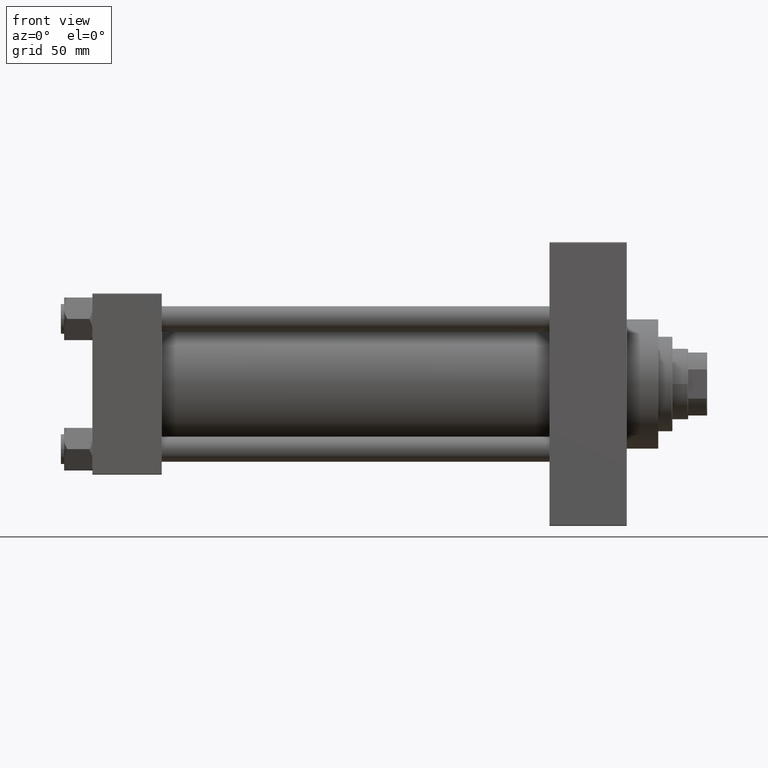
[diagram: clean part render]
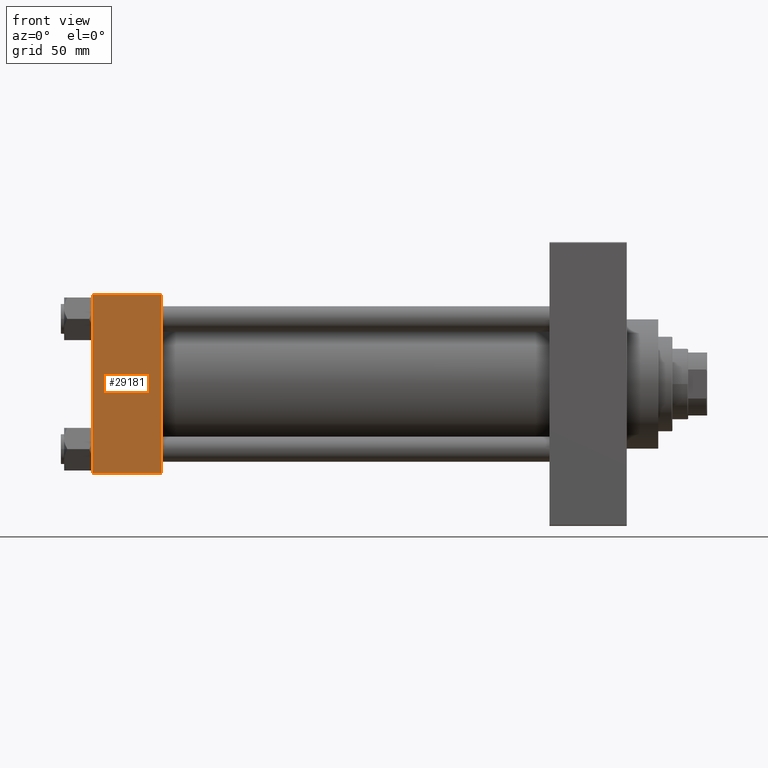
[diagram: same view with one face highlighted and labeled with its STEP entity id]
A machine part, front view. The second image highlights one B-rep face of the part: STEP entity #29181.
In plain terms, the highlighted planar face has unit normal (0, 1, 0).
Its self-contained STEP definition (entity closure, byte-faithful):
#8714 = ORIENTED_EDGE ( 'NONE', *, *, #29016, .T. ) ;
#8963 = DIRECTION ( 'NONE',  ( -1.000000000000000000, 0.000000000000000000, 0.000000000000000000 ) ) ;
#12043 = VERTEX_POINT ( 'NONE', #31220 ) ;
#12754 = ORIENTED_EDGE ( 'NONE', *, *, #18363, .T. ) ;
#17056 = CARTESIAN_POINT ( 'NONE',  ( 44.00000000000000000, -57.50000000000000711, 57.00000000000000711 ) ) ;
#17710 = CARTESIAN_POINT ( 'NONE',  ( 44.00000000000000000, -57.50000000000000711, 57.49999999999999289 ) ) ;
#17930 = VERTEX_POINT ( 'NONE', #29224 ) ;
#18363 = EDGE_CURVE ( 'NONE', #36019, #17930, #21017, .T. ) ;
#18805 = CARTESIAN_POINT ( 'NONE',  ( 0.000000000000000000, -57.50000000000000711, 57.49999999999999289 ) ) ;
#20894 = EDGE_LOOP ( 'NONE', ( #31632, #12754, #30367, #8714 ) ) ;
#21017 = LINE ( 'NONE', #32415, #49674 ) ;
#21049 = CARTESIAN_POINT ( 'NONE',  ( 44.00000000000000000, -57.50000000000000711, 57.49999999999999289 ) ) ;
#21399 = VERTEX_POINT ( 'NONE', #45467 ) ;
#25674 = CARTESIAN_POINT ( 'NONE',  ( 0.000000000000000000, -57.50000000000000711, -57.00000000000000711 ) ) ;
#28794 = VECTOR ( 'NONE', #8963, 1000.000000000000000 ) ;
#29016 = EDGE_CURVE ( 'NONE', #12043, #21399, #36771, .T. ) ;
#29181 = ADVANCED_FACE ( 'NONE', ( #47324 ), #36469, .F. ) ;
#29224 = CARTESIAN_POINT ( 'NONE',  ( 44.00000000000000000, -57.50000000000000711, -57.00000000000000711 ) ) ;
#30367 = ORIENTED_EDGE ( 'NONE', *, *, #38278, .F. ) ;
#31220 = CARTESIAN_POINT ( 'NONE',  ( 44.00000000000000000, -57.50000000000000711, 57.00000000000000711 ) ) ;
#31632 = ORIENTED_EDGE ( 'NONE', *, *, #40291, .T. ) ;
#32197 = DIRECTION ( 'NONE',  ( 0.000000000000000000, -0.000000000000000000, 1.000000000000000000 ) ) ;
#32415 = CARTESIAN_POINT ( 'NONE',  ( 44.00000000000000000, -57.50000000000000711, -57.00000000000000711 ) ) ;
#32912 = DIRECTION ( 'NONE',  ( 0.000000000000000000, 0.000000000000000000, -1.000000000000000000 ) ) ;
#35553 = VECTOR ( 'NONE', #45834, 1000.000000000000000 ) ;
#36019 = VERTEX_POINT ( 'NONE', #25674 ) ;
#36440 = DIRECTION ( 'NONE',  ( 1.000000000000000000, 0.000000000000000000, 0.000000000000000000 ) ) ;
#36469 = PLANE ( 'NONE',  #46534 ) ;
#36771 = LINE ( 'NONE', #17056, #28794 ) ;
#37882 = VECTOR ( 'NONE', #32912, 1000.000000000000000 ) ;
#38278 = EDGE_CURVE ( 'NONE', #12043, #17930, #49029, .T. ) ;
#38283 = LINE ( 'NONE', #18805, #35553 ) ;
#40243 = DIRECTION ( 'NONE',  ( -0.000000000000000000, 1.000000000000000000, 0.000000000000000000 ) ) ;
#40291 = EDGE_CURVE ( 'NONE', #21399, #36019, #38283, .T. ) ;
#45467 = CARTESIAN_POINT ( 'NONE',  ( 0.000000000000000000, -57.50000000000000711, 57.00000000000000711 ) ) ;
#45834 = DIRECTION ( 'NONE',  ( 0.000000000000000000, 0.000000000000000000, -1.000000000000000000 ) ) ;
#46534 = AXIS2_PLACEMENT_3D ( 'NONE', #21049, #40243, #32197 ) ;
#47324 = FACE_OUTER_BOUND ( 'NONE', #20894, .T. ) ;
#49029 = LINE ( 'NONE', #17710, #37882 ) ;
#49674 = VECTOR ( 'NONE', #36440, 1000.000000000000000 ) ;